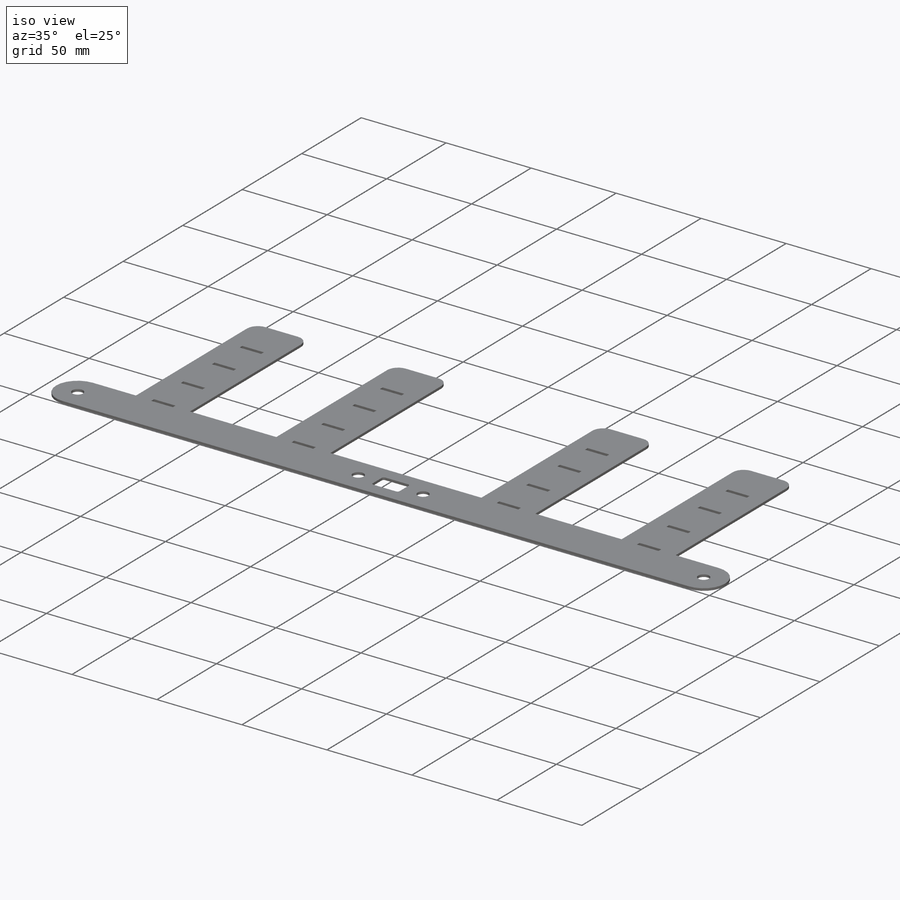
[diagram: iso view]
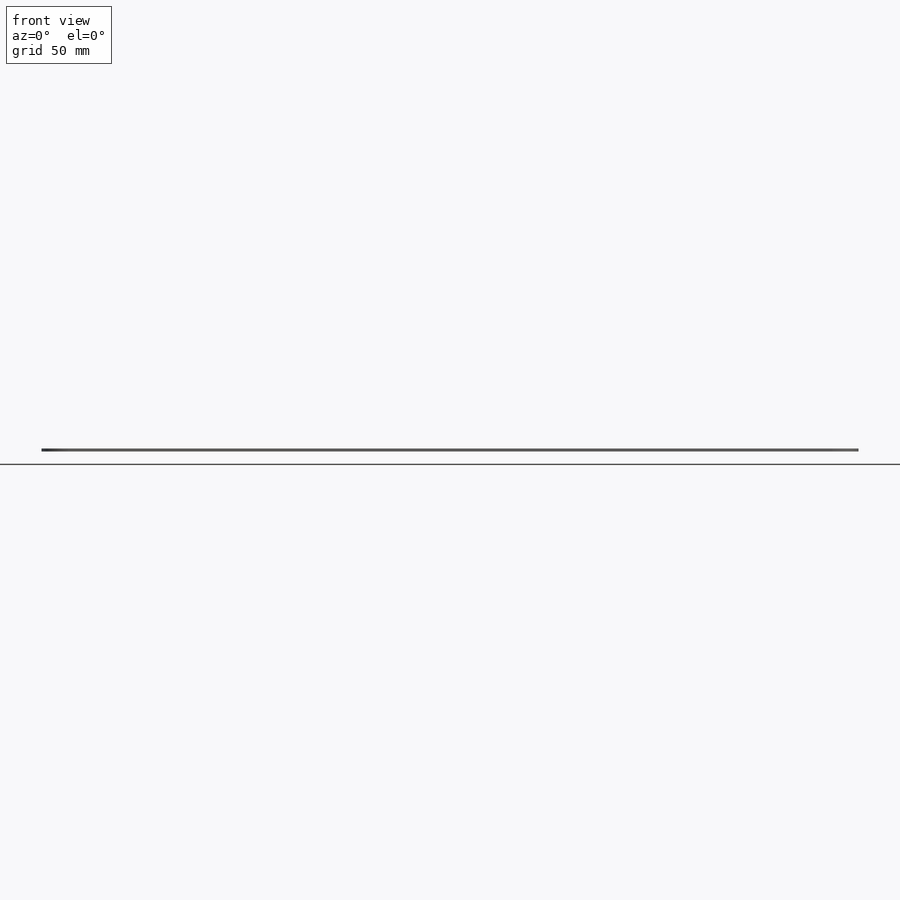
[diagram: front view]
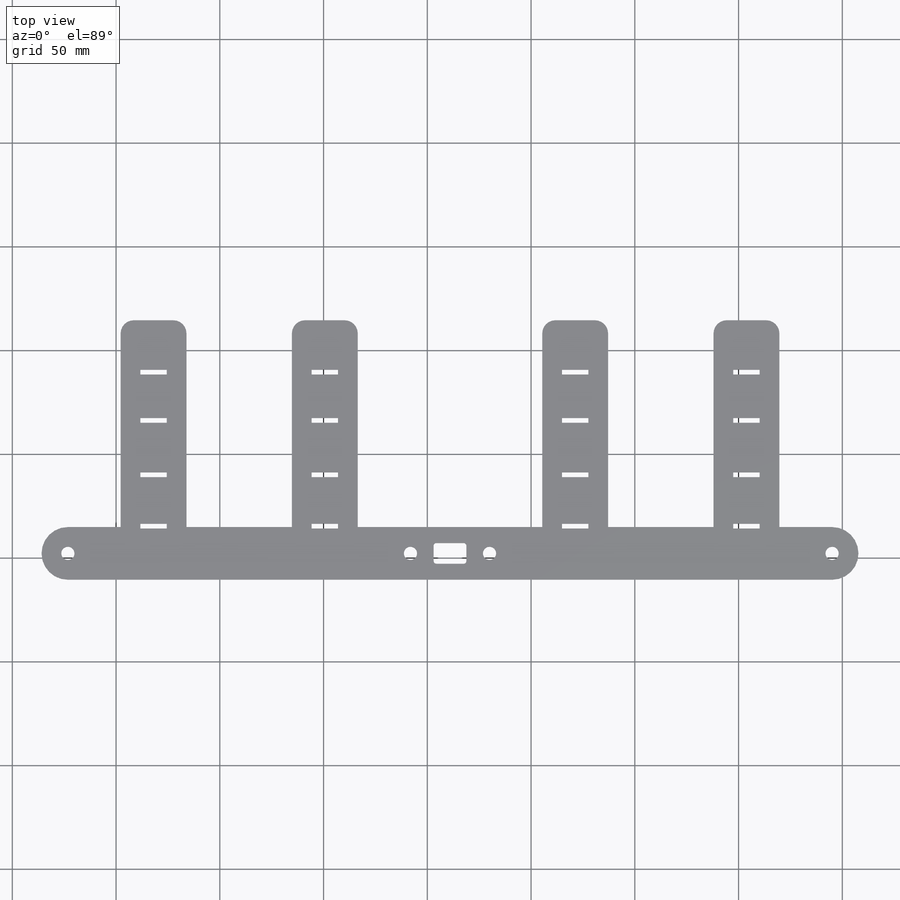
[diagram: top view]
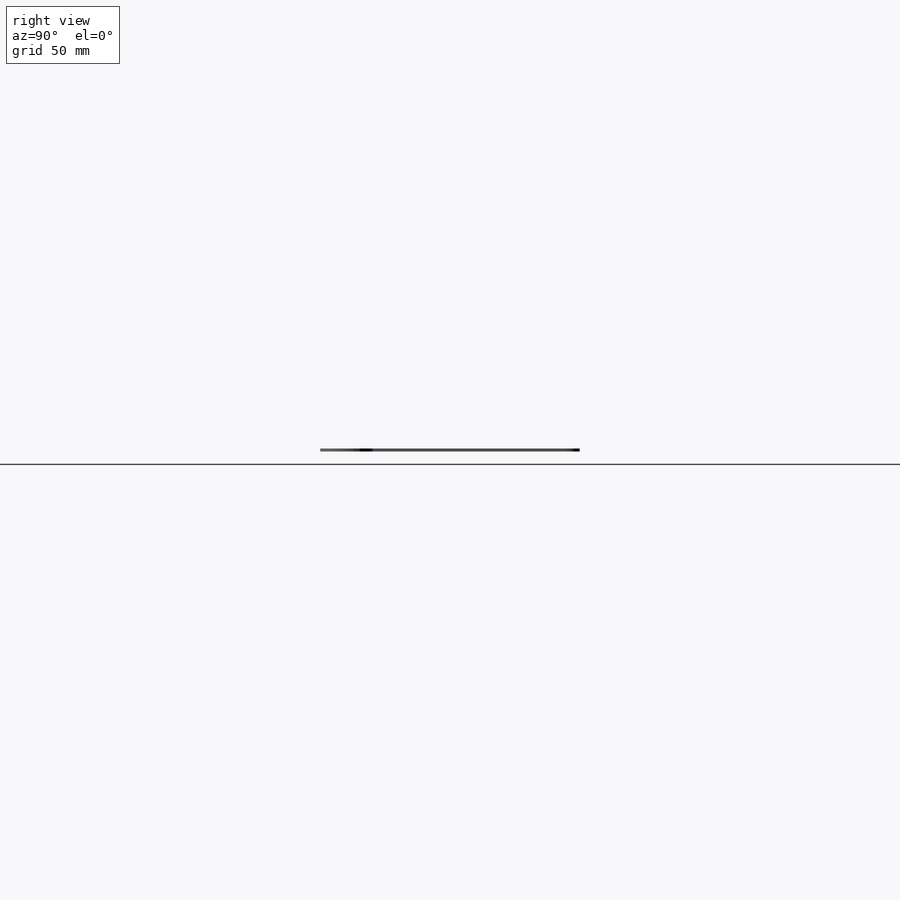
[diagram: right view]
SOLIDWORKS PART (.sldprt)
format: sldprt  version: not decoded by parser v0  size: 1,472,000 bytes
history: native  units: mm
features: sketch x24, sheet_metal_op x11, cut_extrude x2, material x1 + 8 further entries (+18 scaffold rows collapsed; 12 parser-record rows omitted)
feature tree (76):
  scaffold x18  (default folders/planes/origin — collapsed)
  material  "Material <not specified>"
  "ecstatic-diffuser-sheet"
  parser-record x12  (decoder bookkeeping rows leaked as tree rows — omitted from the tree; the rows remain in map.json)
  sketch  "Sketch1"  dims[c1.D4=12.7mm c1.D3=12.7mm c1.D5=3.175mm c2.D3=12.7mm c2.D1=203.2mm c2.D2=38.1mm c3.D3=38.1mm c3.D4=28.575mm c3.D1=203.2mm c3.D2=38.1mm c3.D5=38.1mm c4.D3=203.2mm c4.D1=0.7366mm c4.D2=0.5 c5.D3=0.0mm c5.D6=500.0mm]
  sheet_metal_op  "Base-Flange1"
  sketch  "Sketch8"  dims[c1.D1=0.7366mm c1.D4=90.0deg c1.D5=1.0 c1.D8=0.6985mm c1.D9=0.6985mm c2.D1=0.7366mm c2.D2=500.0mm c2.D3=0.0mm c2.D6=10.0mm c2.D7=25.4mm c2.Edge-Flange2=0.0]
  sketch  "Sketch11"
  sheet_metal_op  "EdgeBend2"  Edge-Flange3=0
  sketch  "Sketch14"
  sheet_metal_op  "EdgeBend3"  Edge-Flange4=0
  sketch  "Sketch19"
  sheet_metal_op  "EdgeBend4"
  sketch  "Sketch30"  dims[D1=25.4mm D2=31.75mm D3=~50.80014mm]
  cut_extrude  "Cut-Extrude2"  Depth=2.54mm
  sketch  "Sketch31"  dims[c1.D1=12.7mm c2.D1=6.35mm c2.D0=6.35mm c3.D0=6.35mm c3.D7=5.0mm]
  cut_extrude  "Cut-Extrude3"  Depth=2.54mm
  sketch  "Sketch31-1"  dims[D1=12.7mm]
  sketch  "Bend-Lines1"
  sketch  "Bounding-Box1"
  sheet_metal_op  "Sheet-Metal5"
  "Flat-Pattern5"
  sketch  "Bend-Lines2"
  sketch  "Bounding-Box2"
  sheet_metal_op  "Sheet-Metal6"
  "Flat-Pattern5"
  sketch  "Bend-Lines2"
  sketch  "Bounding-Box2"
  sheet_metal_op  "Sheet-Metal7"
  "Flat-Pattern5"
  sketch  "Bend-Lines2"
  sketch  "Bounding-Box2"
  sheet_metal_op  "Sheet-Metal8"
  "Flat-Pattern5"
  sketch  "Bend-Lines2"
  sketch  "Bounding-Box2"
  sheet_metal_op  "Sheet-Metal9"
  "Flat-Pattern5"
  sketch  "Bend-Lines2"
  sketch  "Bounding-Box2"
  sheet_metal_op  "Sheet-Metal12"
  "Flat-Pattern5"
  sketch  "Bend-Lines2"
  sketch  "Bounding-Box2"
  sheet_metal_op  "Sheet-Metal13"
  "Flat-Pattern5"
  sketch  "Bend-Lines2"
  sketch  "Bounding-Box2"
decode coverage: 9 of 37 modeling features carry decoded parameters; 8 rows unclassified (native names shown)
note: ~ marks probable driven/reference dimensions
note: suppression state not decoded; provenance and decode notes live in map.json
